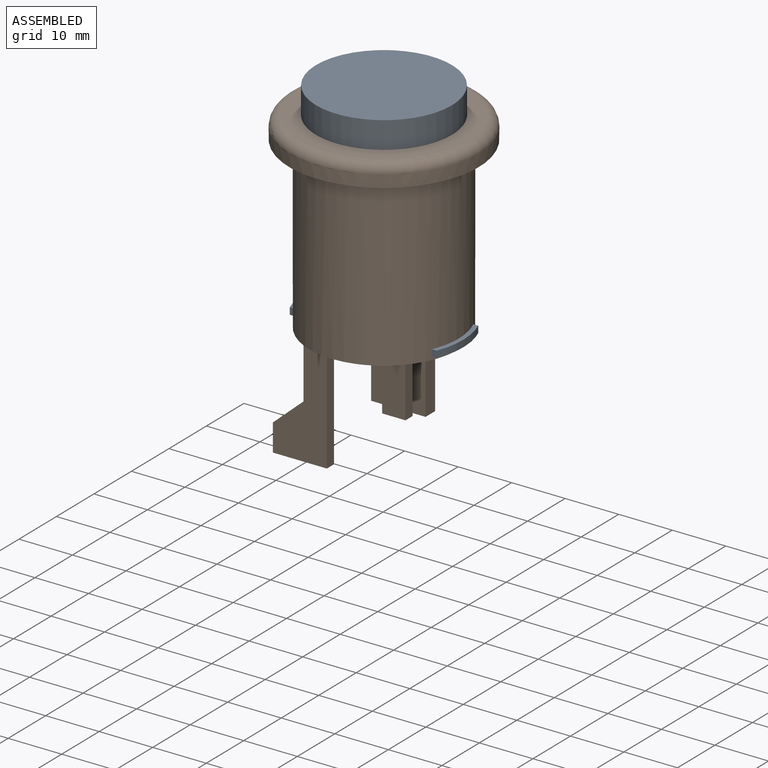
[diagram: assembled view]
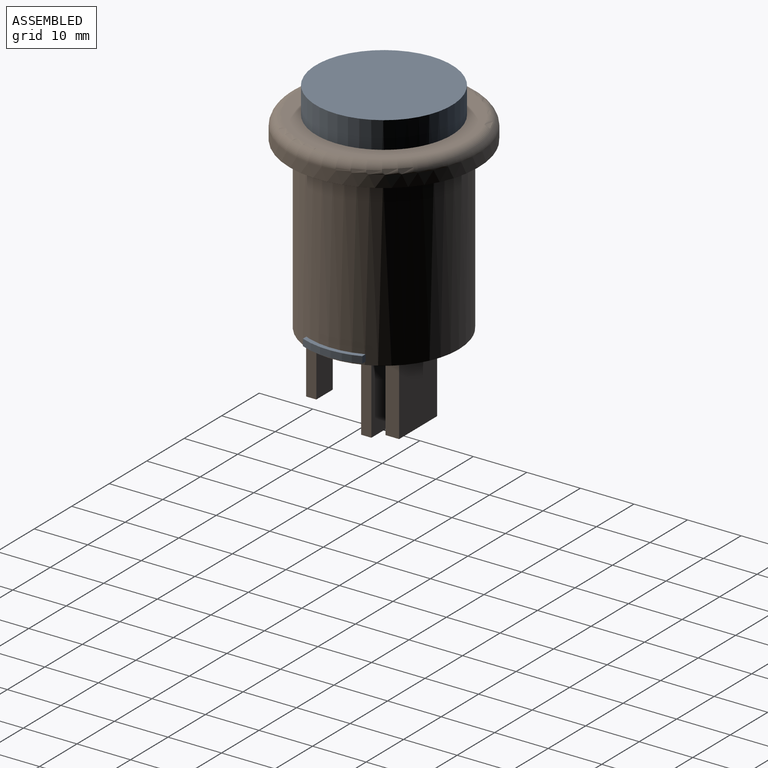
[diagram: assembled view, second angle]
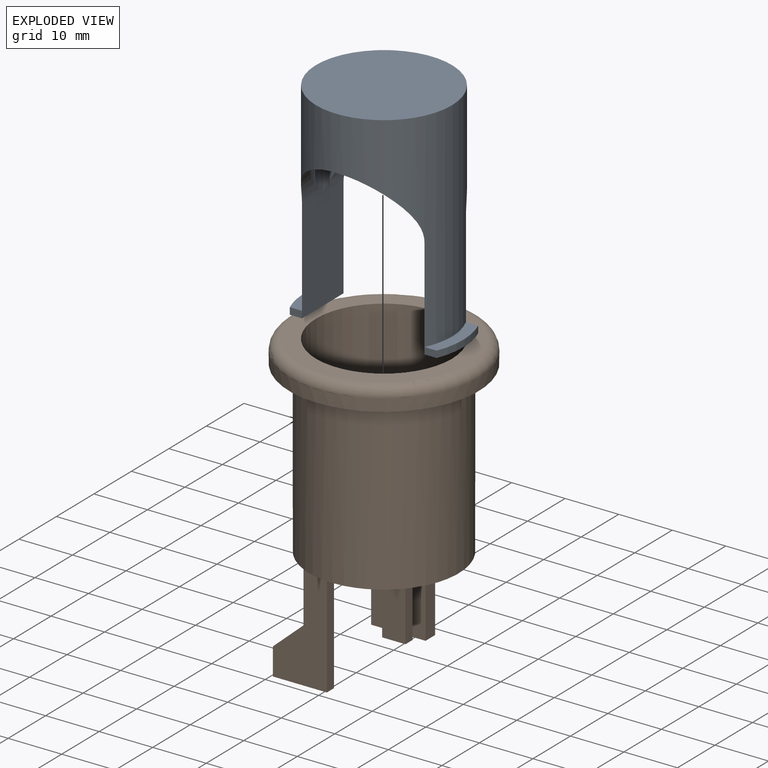
[diagram: exploded view]
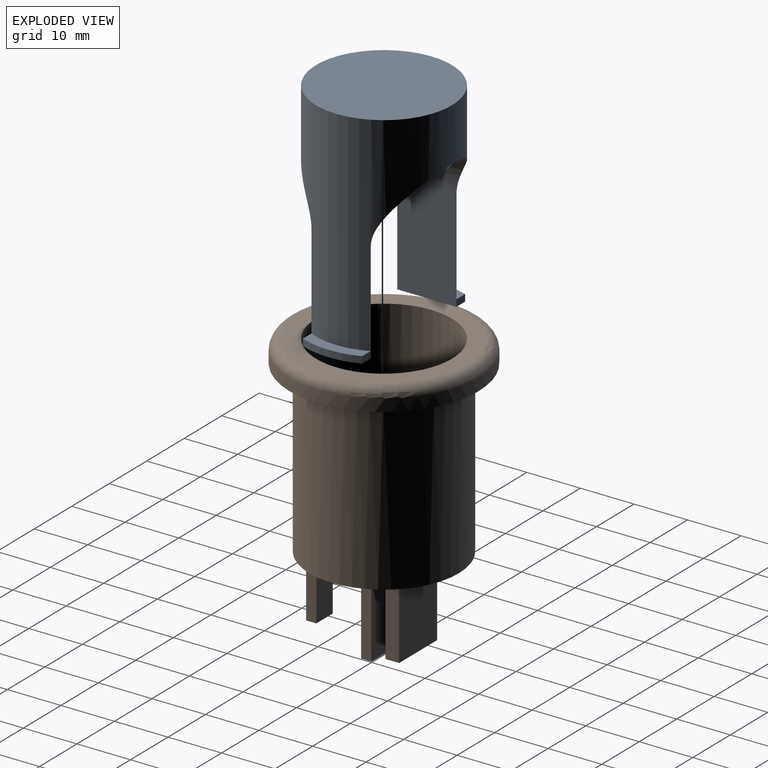
[diagram: exploded view, second angle]
ASSEMBLY  parts=2 mates=2
PART A: 18 faces, bbox 29.7x25.9x40.3 mm
  f0: cylinder r=14.79mm len=11.07mm, axis (0,0,1), area 14.4mm2, adj f1,f2,f3,f4
  f1: plane 11.07x3.43mm, normal (0,0,1), area 23.9mm2, adj f0,f3,f4,f12
  f2: plane 11.07x3.43mm, normal (0,0,-1), area 33.3mm2, adj f0,f3,f4,f7
  f3: plane 2.29x1.27mm, normal (0,1,0), area 2.9mm2, adj f0,f1,f2,f7
  f4: plane 2.29x1.27mm, normal (0,-1,0), area 2.9mm2, adj f0,f1,f2,f7
  f5: plane 23.27x23.27mm, normal (0,0,-1), area 410.4mm2, adj f8
  f6: plane 25.86x25.86mm, normal (0,0,1), area 506.7mm2, adj f12
  f7: plane 18.92x11.07mm, normal (1,0,0), area 209.4mm2, adj f2,f3,f4,f9,f10,f12
  f8: cylinder r=11.43mm len=22.86mm, axis (0,0,1), area 925.4mm2, adj f5,f9,f10
  f9: cylinder r=11.43mm len=22.86mm, axis (0,1,0), area 78.6mm2, adj f7,f8,f12,f13
  f10: cylinder r=11.43mm len=22.86mm, axis (0,1,0), area 78.6mm2, adj f7,f8,f12,f13
  f11: plane 2.29x1.27mm, normal (0,1,0), area 2.9mm2, adj f13,f14,f15,f16
  f12: cylinder r=12.7mm len=39.04mm, axis (0,0,1), area 1638.9mm2, adj f1,f6,f7,f9,f10,f13,f16
  f13: plane 18.92x11.07mm, normal (-1,0,0), area 209.4mm2, adj f9,f10,f11,f12,f14,f17
  f14: plane 11.07x3.43mm, normal (0,0,-1), area 33.3mm2, adj f11,f13,f15,f17
  f15: cylinder r=14.79mm len=11.07mm, axis (0,0,1), area 14.4mm2, adj f11,f14,f16,f17
  f16: plane 11.07x3.43mm, normal (0,0,1), area 23.9mm2, adj f11,f12,f15,f17
  f17: plane 2.29x1.27mm, normal (0,-1,0), area 2.9mm2, adj f13,f14,f15,f16
PART B: 35 faces, bbox 38.2x38.2x58.1 mm
  f0: plane 4.97x4.97mm, normal (0,0,1), area 18.7mm2, adj f1
  f1: cylinder r=2.44mm len=4.88mm, axis (0,0,1), area 25.3mm2, adj f0,f3
  f2: torus R=15.75mm, axis (0,0,1), area 318.9mm2, adj f4,f5
  f3: plane 7.48x7.48mm, normal (0,0,1), area 24.5mm2, adj f1,f6
  f4: cylinder r=17.65mm len=35.31mm, axis (0,0,1), area 249.2mm2, adj f2,f7
  f5: plane 31.91x31.91mm, normal (0,0,1), area 272.4mm2, adj f2,f15
  f6: cylinder r=3.71mm len=7.42mm, axis (0,0,1), area 38.5mm2, adj f3,f8
  f7: plane 35.77x35.77mm, normal (0,0,-1), area 365.9mm2, adj f4,f11
  f8: plane 25.56x24.93mm, normal (0,0,1), area 414.7mm2, adj f6,f12,f13,f14,f15,f16,f17,f18
  f9: plane 10.16x2.54mm, normal (0,0,-1), area 25.8mm2, adj f19,f20,f21,f22
  f10: plane 4.37x1.91mm, normal (0,0,-1), area 8.3mm2, adj f23,f24,f25,f26
  f11: cylinder r=13.97mm len=31.71mm, axis (0,0,1), area 2783.7mm2, adj f7,f28
  f12: plane 4.84x1.27mm, normal (0,1,0), area 6.2mm2, adj f8,f14,f15,f28
  f13: plane 4.84x1.27mm, normal (0,-1,0), area 6.2mm2, adj f8,f14,f15,f28
  f14: plane 4.88x1.27mm, normal (-1,0,0), area 6.2mm2, adj f8,f12,f13,f28
  f15: cylinder r=12.7mm len=35.87mm, axis (0,0,1), area 2773mm2, adj f5,f8,f12,f13,f16,f18,f28
  f16: plane 4.84x1.27mm, normal (0,1,0), area 6.2mm2, adj f8,f15,f17,f28
  f17: plane 4.88x1.27mm, normal (1,0,0), area 6.2mm2, adj f8,f16,f18,f28
  f18: plane 4.84x1.27mm, normal (0,-1,0), area 6.2mm2, adj f8,f15,f17,f28
  f19: plane 15.24x2.54mm, normal (1,0,0), area 38.7mm2, adj f9,f20,f22,f28
  f20: plane 15.24x10.16mm, normal (0,-1,0), area 154.8mm2, adj f9,f19,f21,f28
  f21: plane 15.24x2.54mm, normal (-1,0,0), area 38.7mm2, adj f9,f20,f22,f28
  f22: plane 15.24x10.16mm, normal (0,1,0), area 154.8mm2, adj f9,f19,f21,f28
  f23: plane 10.16x1.91mm, normal (1,0,0), area 19.4mm2, adj f10,f24,f26,f28
  f24: plane 10.16x4.37mm, normal (0,-1,0), area 44.4mm2, adj f10,f23,f25,f28
  f25: plane 10.16x1.91mm, normal (-1,0,0), area 19.4mm2, adj f10,f24,f26,f28
  f26: plane 10.16x4.37mm, normal (0,1,0), area 44.4mm2, adj f10,f23,f25,f28
  f27: plane 10.08x1.91mm, normal (0,0,-1), area 19.2mm2, adj f29,f30,f31,f33
  f28: plane 28.3x28.3mm, normal (0,0,-1), area 521.9mm2, adj f11,f12,f13,f14,f15,f16,f17,f18
  f29: plane 22.23x1.91mm, normal (1,0,0), area 42.3mm2, adj f27,f28,f31,f33
  f30: plane 5.08x1.91mm, normal (-1,0,0), area 9.7mm2, adj f27,f31,f33,f34
  f31: plane 22.23x10.08mm, normal (0,1,0), area 140.6mm2, adj f27,f28,f29,f30,f32,f34
  f32: plane 12.07x1.91mm, normal (-1,0,0), area 23mm2, adj f28,f31,f33,f34
  f33: plane 22.23x10.08mm, normal (0,-1,0), area 140.6mm2, adj f27,f28,f29,f30,f32,f34
  f34: plane 5.72x5.08mm, normal (-0.66,0,0.75), area 14.6mm2, adj f30,f31,f32,f33
PLACE A t=(-2.92,-12.7,7.32)mm
PLACE B t=(-2.92,-12.7,5.49)mm fixed
MATE planar A.f0 <-> B.f1  axis (0,0,1) through (-2.92,-12.7,28.71)mm
MATE cylindrical B.f1 <-> A.f0  axis (0,0,1) through (-2.92,-12.7,23.71)mm
